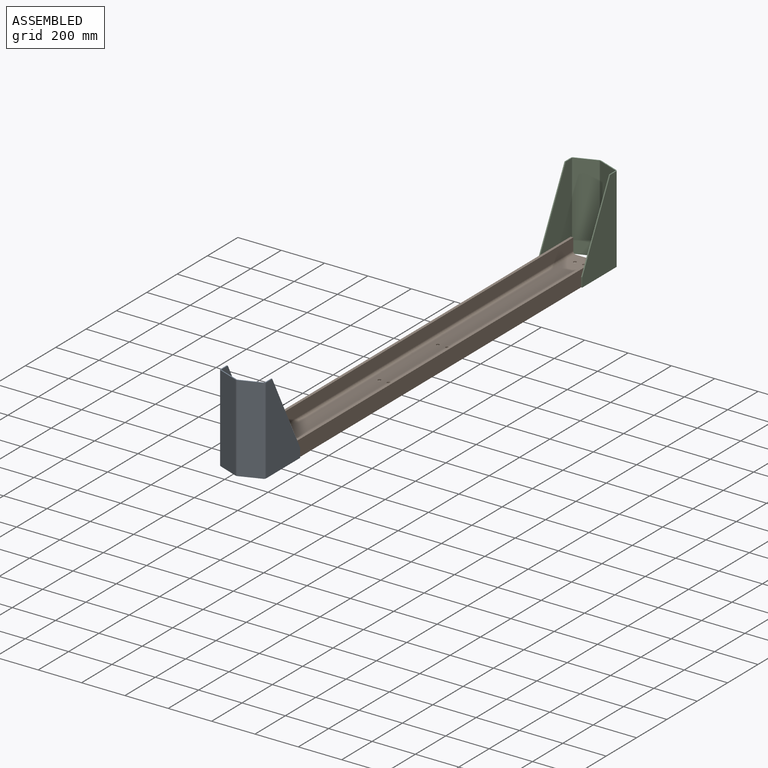
[diagram: assembled view]
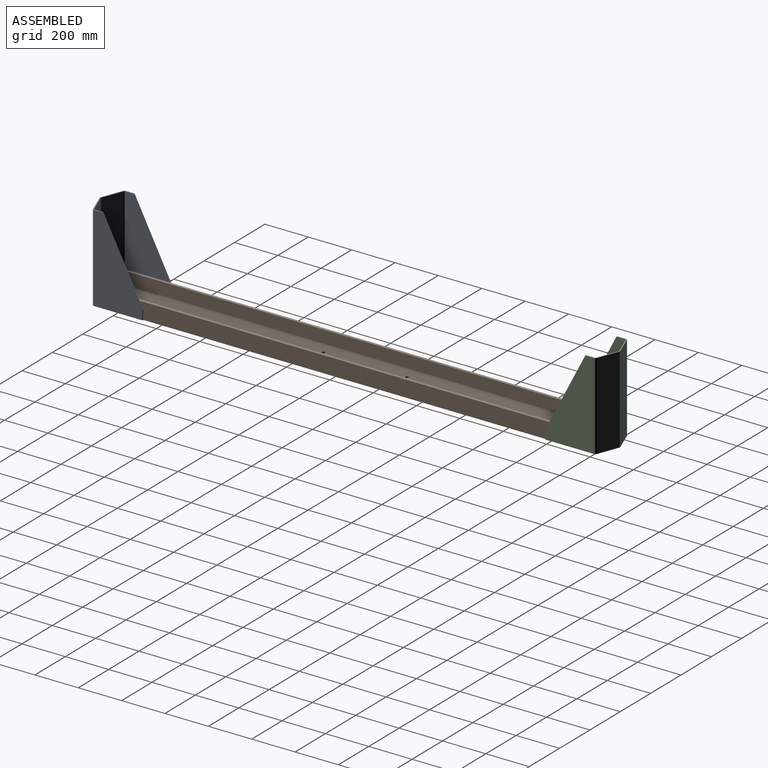
[diagram: assembled view, second angle]
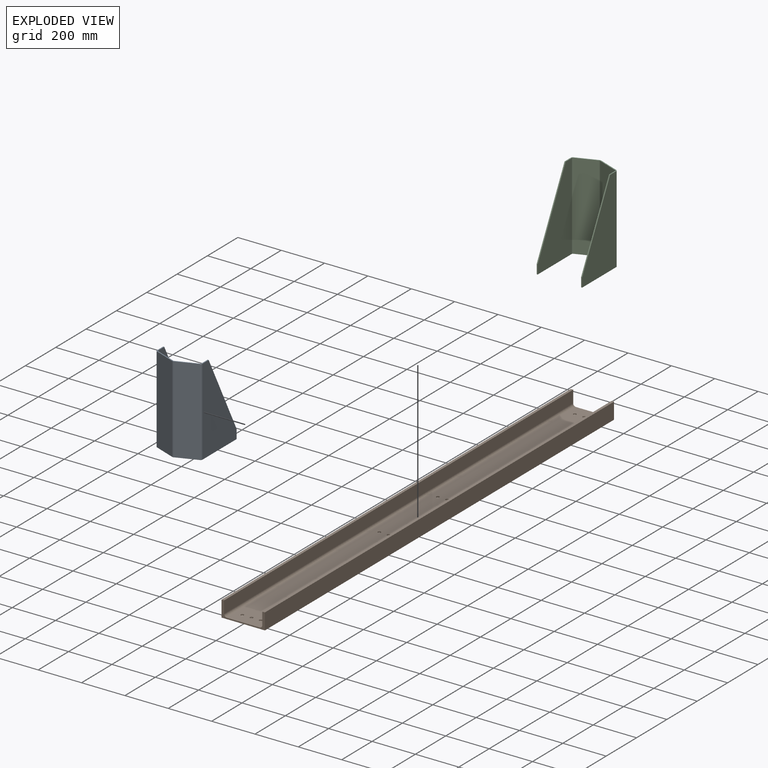
[diagram: exploded view]
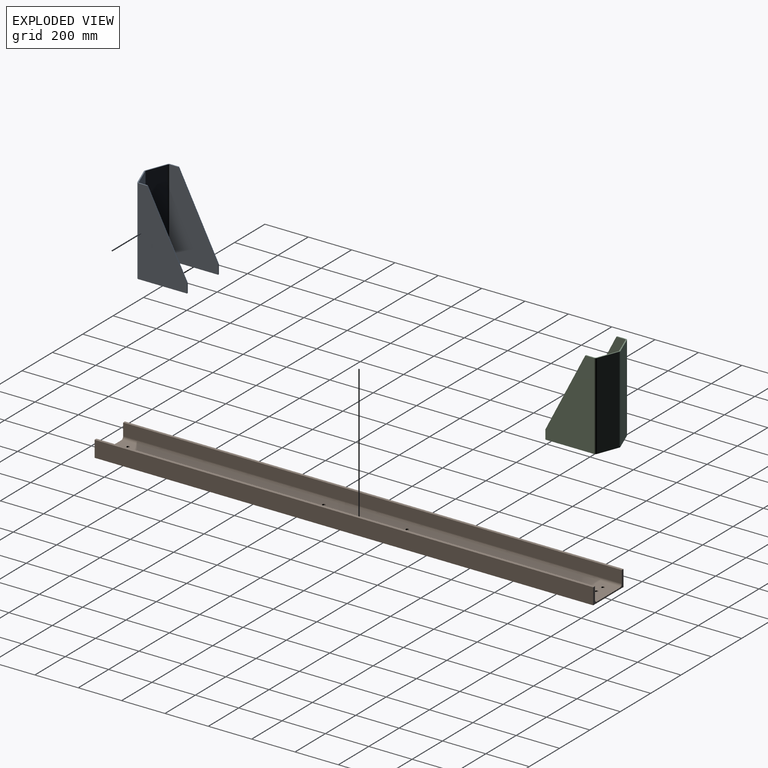
[diagram: exploded view, second angle]
ASSEMBLY  parts=3 mates=2
PART A: 20 faces, bbox 210x270.4x400 mm
  f0: plane 43x5mm, normal (0,-1,0), area 215mm2, adj f8,f9,f17,f19
  f1: plane 43x5mm, normal (0,-1,0), area 215mm2, adj f2,f15,f17,f18
  f2: plane 400x223.82mm, normal (1,0,0), area 56715.9mm2, adj f1,f3,f16,f17,f18
  f3: plane 210x86.54mm, normal (0,0,1), area 1535.7mm2, adj f2,f4,f5,f6,f7,f8,f9,f10
  f4: plane 400x95mm, normal (0.36,0.93,0), area 40713.8mm2, adj f3,f5,f16,f17
  f5: cylinder r=10mm len=400mm, axis (0,0,-1), area 2937.4mm2, adj f3,f4,f6,f17
  f6: plane 400x95mm, normal (-0.36,0.93,0), area 40713.8mm2, adj f3,f5,f7,f17
  f7: cylinder r=10mm len=400mm, axis (0,0,-1), area 4814.5mm2, adj f3,f6,f8,f17
  f8: plane 400x223.82mm, normal (-1,0,0), area 56715.9mm2, adj f0,f3,f7,f17,f19
  f9: plane 400x223.82mm, normal (1,0,0), area 56715.9mm2, adj f0,f3,f10,f17,f19
  f10: cylinder r=5mm len=400mm, axis (0,0,-1), area 2407.2mm2, adj f3,f9,f11,f17
  f11: plane 400x95mm, normal (0.36,-0.93,0), area 40713.8mm2, adj f3,f10,f12,f17
  f12: cylinder r=5mm len=400mm, axis (0,0,-1), area 1468.7mm2, adj f3,f11,f13,f17
  f13: plane 400x95mm, normal (-0.36,-0.93,0), area 40713.8mm2, adj f3,f12,f14,f17
  f14: cylinder r=5mm len=400mm, axis (0,0,-1), area 2407.2mm2, adj f3,f13,f15,f17
  f15: plane 400x223.82mm, normal (-1,0,0), area 56715.9mm2, adj f1,f3,f14,f17,f18
  f16: cylinder r=10mm len=400mm, axis (0,0,-1), area 4814.5mm2, adj f2,f3,f4,f17
  f17: plane 270.36x210mm, normal (0,0,-1), area 3373.8mm2, adj f0,f1,f2,f4,f5,f6,f7,f8
  f18: plane 357x183.82mm, normal (0,-0.89,0.46), area 2007.7mm2, adj f1,f2,f3,f15
  f19: plane 357x183.82mm, normal (0,-0.89,0.46), area 2007.7mm2, adj f0,f3,f8,f9
PART B: 24 faces, bbox 75x2300x200 mm
  f0: plane 2300x57mm, normal (0,0,-1), area 131100mm2, adj f1,f9,f10,f11
  f1: plane 2300x12mm, normal (1,0,0), area 27600mm2, adj f0,f2,f10,f11
  f2: plane 2300x75mm, normal (0,0,1), area 172500mm2, adj f1,f3,f10,f11
  f3: plane 2300x200mm, normal (-1,0,0), area 458152.7mm2, adj f2,f4,f10,f11,f12,f13,f14,f15
  f4: plane 2300x75mm, normal (0,0,-1), area 172500mm2, adj f3,f5,f10,f11
  f5: plane 2300x12mm, normal (1,0,0), area 27600mm2, adj f4,f6,f10,f11
  f6: plane 2300x57mm, normal (0,0,1), area 131100mm2, adj f5,f7,f10,f11
  f7: cylinder r=12mm len=2300mm, axis (0,1,0), area 43354mm2, adj f6,f8,f10,f11
  f8: plane 2300x152mm, normal (1,0,0), area 347752.7mm2, adj f7,f9,f10,f11,f12,f13,f14,f15
  f9: cylinder r=12mm len=2300mm, axis (0,1,0), area 43354mm2, adj f0,f8,f10,f11
  f10: plane 200x75mm, normal (0,-1,0), area 2917.8mm2, adj f0,f1,f2,f3,f4,f5,f6,f7
  f11: plane 200x75mm, normal (0,1,0), area 2917.8mm2, adj f0,f1,f2,f3,f4,f5,f6,f7
  f12: cylinder r=7mm len=14mm, axis (1,0,0), area 263.9mm2, adj f3,f8
  f13: cylinder r=7mm len=14mm, axis (1,0,0), area 263.9mm2, adj f3,f8
  f14: cylinder r=7mm len=14mm, axis (1,0,0), area 263.9mm2, adj f3,f8
  f15: cylinder r=7mm len=14mm, axis (1,0,0), area 263.9mm2, adj f3,f8
  f16: cylinder r=7mm len=14mm, axis (1,0,0), area 263.9mm2, adj f3,f8
  f17: cylinder r=7mm len=14mm, axis (1,0,0), area 263.9mm2, adj f3,f8
  f18: cylinder r=7mm len=14mm, axis (1,0,0), area 263.9mm2, adj f3,f8
  f19: cylinder r=7mm len=14mm, axis (1,0,0), area 263.9mm2, adj f3,f8
  f20: cylinder r=7mm len=14mm, axis (1,0,0), area 263.9mm2, adj f3,f8
  f21: cylinder r=7mm len=14mm, axis (1,0,0), area 263.9mm2, adj f3,f8
  f22: cylinder r=7mm len=14mm, axis (1,0,0), area 263.9mm2, adj f3,f8
  f23: cylinder r=7mm len=14mm, axis (1,0,0), area 263.9mm2, adj f3,f8
PART C: same geometry as A
PLACE A rot(axis=(0,0,1),180deg) t=(-32.05,-1431.15,-207.99)mm
PLACE B rot(axis=(0,-1,0),90deg) t=(-55.55,616.18,-207.99)mm
PLACE C t=(-279.05,371.5,-207.99)mm
MATE fastened C.f15 <-> B.f4  axis (-1,0,0) through (-55.55,399.48,-207.99)mm
MATE fastened A.f9 <-> B.f4  axis (-1,0,0) through (-55.55,-1459.12,-207.99)mm
